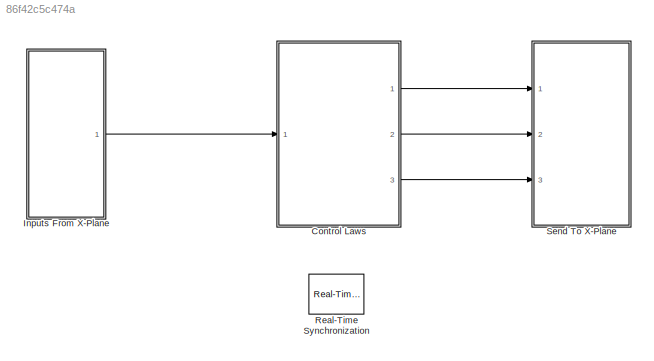
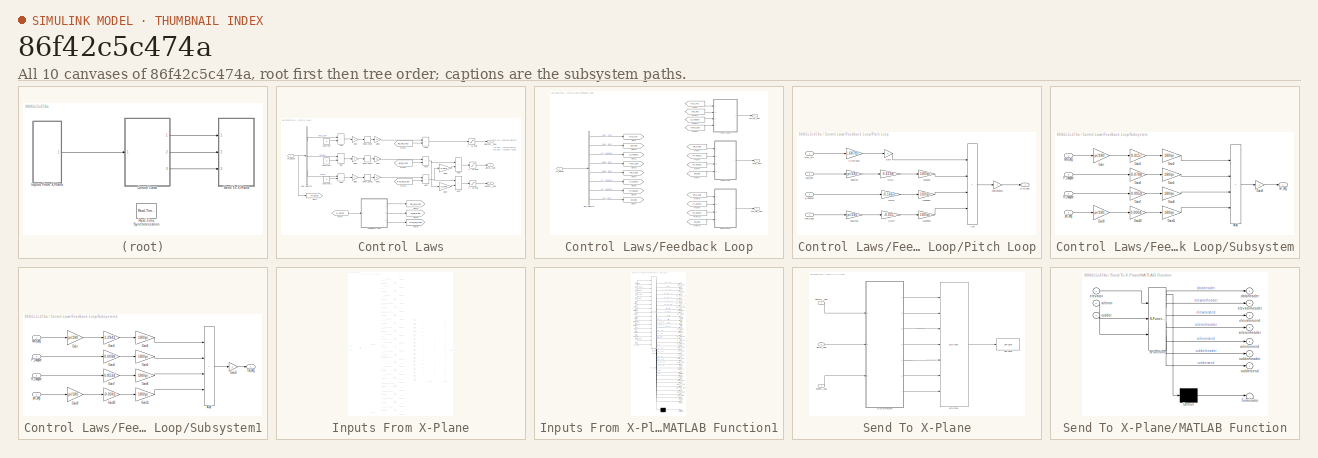
[diagram: thumbnail index - all 10 canvases of the model, root first then tree order]
MODEL slx_86f42c5c474a
KIND model
CONFIG AbsTol = auto
CONFIG EnableMultiTasking = off
CONFIG FixedStep = .0125
CONFIG MaxStep = auto
CONFIG MinStep = auto
CONFIG RelTol = 1e-3
CONFIG SampleTimeConstraint = Unconstrained
CONFIG Solver = FixedStepAuto
CONFIG SolverName = FixedStepAuto
CONFIG StartTime = 0.0
CONFIG StopTime = inf
BLOCK [SubSystem] Control Laws
  Ports = [1, 3]
BLOCK [Saturate] Control Laws/+//- 15 deg
  LowerLimit = -15
  UpperLimit = 15
BLOCK [Saturate] Control Laws/+//- 18 deg
  LowerLimit = -18
  UpperLimit = 18
BLOCK [Saturate] Control Laws/+//- 30 deg
  LowerLimit = -30
  UpperLimit = 30
BLOCK [Sum] Control Laws/Add
  IconShape = rectangular
  Ports = [2, 1]
BLOCK [Sum] Control Laws/Add1
  IconShape = rectangular
  Ports = [2, 1]
BLOCK [Sum] Control Laws/Add2
  IconShape = rectangular
  Ports = [2, 1]
BLOCK [Sum] Control Laws/Add3
  IconShape = rectangular
  Ports = [2, 1]
BLOCK [Sum] Control Laws/Add4
  IconShape = rectangular
  Ports = [2, 1]
BLOCK [Sum] Control Laws/Add5
  IconShape = rectangular
  Ports = [2, 1]
BLOCK [Sum] Control Laws/Add6
  IconShape = rectangular
  Ports = [2, 1]
BLOCK [Sum] Control Laws/Add7
  IconShape = rectangular
  Ports = [2, 1]
BLOCK [Outport] Control Laws/Aileron__Deg
  Port = 2
BLOCK [BusSelector] Control Laws/Bus Selector
  OutputSignals = long_stick,lat_stick,pedal
  Ports = [1, 3]
BLOCK [Constant] Control Laws/Constant
  OutDataTypeStr = single
  Value = -.5
BLOCK [Constant] Control Laws/Constant1
  OutDataTypeStr = single
  Value = -.5
BLOCK [Constant] Control Laws/Constant2
  OutDataTypeStr = single
  Value = -.5
BLOCK [DeadZone] Control Laws/Dead Zone
  LowerValue = -0.05
  UpperValue = 0.05
BLOCK [DeadZone] Control Laws/Dead Zone1
  LowerValue = -0.05
  UpperValue = 0.05
BLOCK [DeadZone] Control Laws/Dead Zone2
  LowerValue = -0.05
  UpperValue = 0.05
BLOCK [Outport] Control Laws/Elevator__Deg
BLOCK [SubSystem] Control Laws/Feedback Loop
  Ports = [1, 3]
BLOCK [Outport] Control Laws/Feedback Loop/Ail_FB__DEG
  Port = 2
BLOCK [BusSelector] Control Laws/Feedback Loop/Bus Selector
  OutputSignals = vtas__KTS,aoa__deg,Q__radqsec,theta__deg,beta__deg,P__radqsec,R__radqsec,phi__deg
  Ports = [1, 8]
BLOCK [Outport] Control Laws/Feedback Loop/Elv_FB__DEG
BLOCK [From] Control Laws/Feedback Loop/From
  GotoTag = vtas_KTS
BLOCK [From] Control Laws/Feedback Loop/From1
  GotoTag = aoa_deg
BLOCK [From] Control Laws/Feedback Loop/From10
  GotoTag = R_radqsec
BLOCK [From] Control Laws/Feedback Loop/From11
  GotoTag = phi_deg
BLOCK [From] Control Laws/Feedback Loop/From2
  GotoTag = Q_radqsec
BLOCK [From] Control Laws/Feedback Loop/From3
  GotoTag = theta_deg
BLOCK [From] Control Laws/Feedback Loop/From4
  GotoTag = beta_deg
BLOCK [From] Control Laws/Feedback Loop/From5
  GotoTag = P_radqsec
BLOCK [From] Control Laws/Feedback Loop/From6
  GotoTag = R_radqsec
BLOCK [From] Control Laws/Feedback Loop/From7
  GotoTag = phi_deg
BLOCK [From] Control Laws/Feedback Loop/From8
  GotoTag = beta_deg
BLOCK [From] Control Laws/Feedback Loop/From9
  GotoTag = P_radqsec
BLOCK [Goto] Control Laws/Feedback Loop/Goto
  GotoTag = vtas_KTS
BLOCK [Goto] Control Laws/Feedback Loop/Goto1
  GotoTag = aoa_deg
BLOCK [Goto] Control Laws/Feedback Loop/Goto2
  GotoTag = Q_radqsec
BLOCK [Goto] Control Laws/Feedback Loop/Goto3
  GotoTag = theta_deg
BLOCK [Goto] Control Laws/Feedback Loop/Goto4
  GotoTag = beta_deg
BLOCK [Goto] Control Laws/Feedback Loop/Goto5
  GotoTag = P_radqsec
BLOCK [Goto] Control Laws/Feedback Loop/Goto6
  GotoTag = R_radqsec
BLOCK [Goto] Control Laws/Feedback Loop/Goto7
  GotoTag = phi_deg
BLOCK [SubSystem] Control Laws/Feedback Loop/Pitch Loop
  Ports = [4, 1]
BLOCK [Sum] Control Laws/Feedback Loop/Pitch Loop/Add
  IconShape = rectangular
  Inputs = ++++
  Ports = [4, 1]
BLOCK [Outport] Control Laws/Feedback Loop/Pitch Loop/Elev_deg
BLOCK [Gain] Control Laws/Feedback Loop/Pitch Loop/Gain
  Gain = 0
BLOCK [Gain] Control Laws/Feedback Loop/Pitch Loop/Gain1
  Gain = 0.4198
BLOCK [Gain] Control Laws/Feedback Loop/Pitch Loop/Gain2
  Gain = -0.1663
BLOCK [Gain] Control Laws/Feedback Loop/Pitch Loop/Gain3
  Gain = -0.021
BLOCK [Gain] Control Laws/Feedback Loop/Pitch Loop/Kts2ftqsec
  Gain = 1.68781
BLOCK [Inport] Control Laws/Feedback Loop/Pitch Loop/aoa_deg
  Port = 2
BLOCK [Gain] Control Laws/Feedback Loop/Pitch Loop/deg2rad
  Gain = pi/180
BLOCK [Gain] Control Laws/Feedback Loop/Pitch Loop/deg2rad2
  Gain = pi/180
BLOCK [Gain] Control Laws/Feedback Loop/Pitch Loop/negfeedback
  Gain = -1
BLOCK [Inport] Control Laws/Feedback Loop/Pitch Loop/q_radqsec
  Port = 3
BLOCK [Gain] Control Laws/Feedback Loop/Pitch Loop/rad2deg
  Gain = 180/pi
BLOCK [Gain] Control Laws/Feedback Loop/Pitch Loop/rad2deg1
  Gain = 180/pi
BLOCK [Gain] Control Laws/Feedback Loop/Pitch Loop/rad2deg2
  Gain = 180/pi
BLOCK [Inport] Control Laws/Feedback Loop/Pitch Loop/theta_deg
  Port = 4
BLOCK [Inport] Control Laws/Feedback Loop/Pitch Loop/vtas__kts
BLOCK [Outport] Control Laws/Feedback Loop/Rud_FB__DEG
  Port = 3
BLOCK [SubSystem] Control Laws/Feedback Loop/Subsystem
  Ports = [4, 1]
BLOCK [Sum] Control Laws/Feedback Loop/Subsystem/Add
  IconShape = rectangular
  Inputs = ++++
  Ports = [4, 1]
BLOCK [Gain] Control Laws/Feedback Loop/Subsystem/Gain
  Gain = pi/180
BLOCK [Gain] Control Laws/Feedback Loop/Subsystem/Gain1
  Gain = -0.4157
BLOCK [Gain] Control Laws/Feedback Loop/Subsystem/Gain10
  Gain = 0.0004
BLOCK [Gain] Control Laws/Feedback Loop/Subsystem/Gain11
  Gain = 180/pi
BLOCK [Gain] Control Laws/Feedback Loop/Subsystem/Gain2
  Gain = 180/pi
BLOCK [Gain] Control Laws/Feedback Loop/Subsystem/Gain3
  Gain = -1
BLOCK [Gain] Control Laws/Feedback Loop/Subsystem/Gain4
  Gain = -0.0788
BLOCK [Gain] Control Laws/Feedback Loop/Subsystem/Gain5
  Gain = 180/pi
BLOCK [Gain] Control Laws/Feedback Loop/Subsystem/Gain7
  Gain = -0.0059
BLOCK [Gain] Control Laws/Feedback Loop/Subsystem/Gain8
  Gain = 180/pi
BLOCK [Gain] Control Laws/Feedback Loop/Subsystem/Gain9
  Gain = pi/180
BLOCK [Inport] Control Laws/Feedback Loop/Subsystem/P_radqsec
  Port = 2
BLOCK [Inport] Control Laws/Feedback Loop/Subsystem/R_radqsec
  Port = 3
BLOCK [Outport] Control Laws/Feedback Loop/Subsystem/ail_deg
BLOCK [Inport] Control Laws/Feedback Loop/Subsystem/beta_deg
BLOCK [Inport] Control Laws/Feedback Loop/Subsystem/phi_deg
  Port = 4
BLOCK [SubSystem] Control Laws/Feedback Loop/Subsystem1
  Ports = [4, 1]
BLOCK [Sum] Control Laws/Feedback Loop/Subsystem1/Add
  IconShape = rectangular
  Inputs = ++++
  Ports = [4, 1]
BLOCK [Gain] Control Laws/Feedback Loop/Subsystem1/Gain
  Gain = pi/180
BLOCK [Gain] Control Laws/Feedback Loop/Subsystem1/Gain1
  Gain = 1.2943
BLOCK [Gain] Control Laws/Feedback Loop/Subsystem1/Gain10
  Gain = -0.0041
BLOCK [Gain] Control Laws/Feedback Loop/Subsystem1/Gain11
  Gain = 180/pi
BLOCK [Gain] Control Laws/Feedback Loop/Subsystem1/Gain2
  Gain = 180/pi
BLOCK [Gain] Control Laws/Feedback Loop/Subsystem1/Gain3
  Gain = -1
BLOCK [Gain] Control Laws/Feedback Loop/Subsystem1/Gain4
  Gain = 0.0098
BLOCK [Gain] Control Laws/Feedback Loop/Subsystem1/Gain5
  Gain = 180/pi
BLOCK [Gain] Control Laws/Feedback Loop/Subsystem1/Gain7
  Gain = 0.8534
BLOCK [Gain] Control Laws/Feedback Loop/Subsystem1/Gain8
  Gain = 180/pi
BLOCK [Gain] Control Laws/Feedback Loop/Subsystem1/Gain9
  Gain = pi/180
BLOCK [Inport] Control Laws/Feedback Loop/Subsystem1/P_radqsec
  Port = 2
BLOCK [Inport] Control Laws/Feedback Loop/Subsystem1/R_radqsec
  Port = 3
BLOCK [Inport] Control Laws/Feedback Loop/Subsystem1/beta_deg
BLOCK [Inport] Control Laws/Feedback Loop/Subsystem1/phi_deg
  Port = 4
BLOCK [Outport] Control Laws/Feedback Loop/Subsystem1/rud_deg
BLOCK [Inport] Control Laws/Feedback Loop/XP_Signals
BLOCK [From] Control Laws/From
  GotoTag = XP_Signals
BLOCK [From] Control Laws/From1
  GotoTag = Elv_FB_DEG
BLOCK [From] Control Laws/From2
  GotoTag = Ail_FB_DEG
BLOCK [From] Control Laws/From3
  GotoTag = Rud_FB_DEG
BLOCK [Gain] Control Laws/Gain
  Gain = -2
BLOCK [Gain] Control Laws/Gain1
  Gain = 2
BLOCK [Gain] Control Laws/Gain2
  Gain = -2
BLOCK [Gain] Control Laws/Gain3
  Gain = 15
BLOCK [Gain] Control Laws/Gain4
  Gain = 18
BLOCK [Gain] Control Laws/Gain5
  Gain = 30
BLOCK [Gain] Control Laws/Gain6
  Gain = -0.0974
BLOCK [Gain] Control Laws/Gain7
  Gain = -0.0749
BLOCK [Goto] Control Laws/Goto
  GotoTag = XP_Signals
BLOCK [Goto] Control Laws/Goto1
  GotoTag = Elv_FB_DEG
BLOCK [Goto] Control Laws/Goto2
  GotoTag = Ail_FB_DEG
BLOCK [Goto] Control Laws/Goto3
  GotoTag = Rud_FB_DEG
BLOCK [Outport] Control Laws/Rudder__Deg
  Port = 3
BLOCK [Inport] Control Laws/XP_Signals
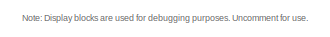
[diagram: Inputs From X-Plane - part 1/9, top left region]
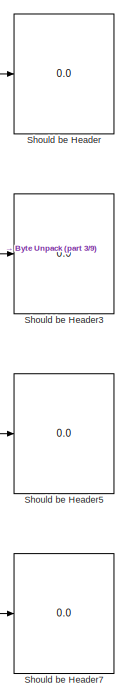
[diagram: Inputs From X-Plane - part 2/9, top center region]
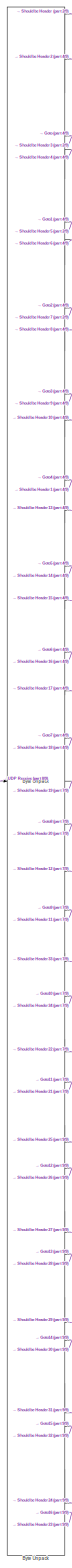
[diagram: Inputs From X-Plane - part 3/9, left side, full height]
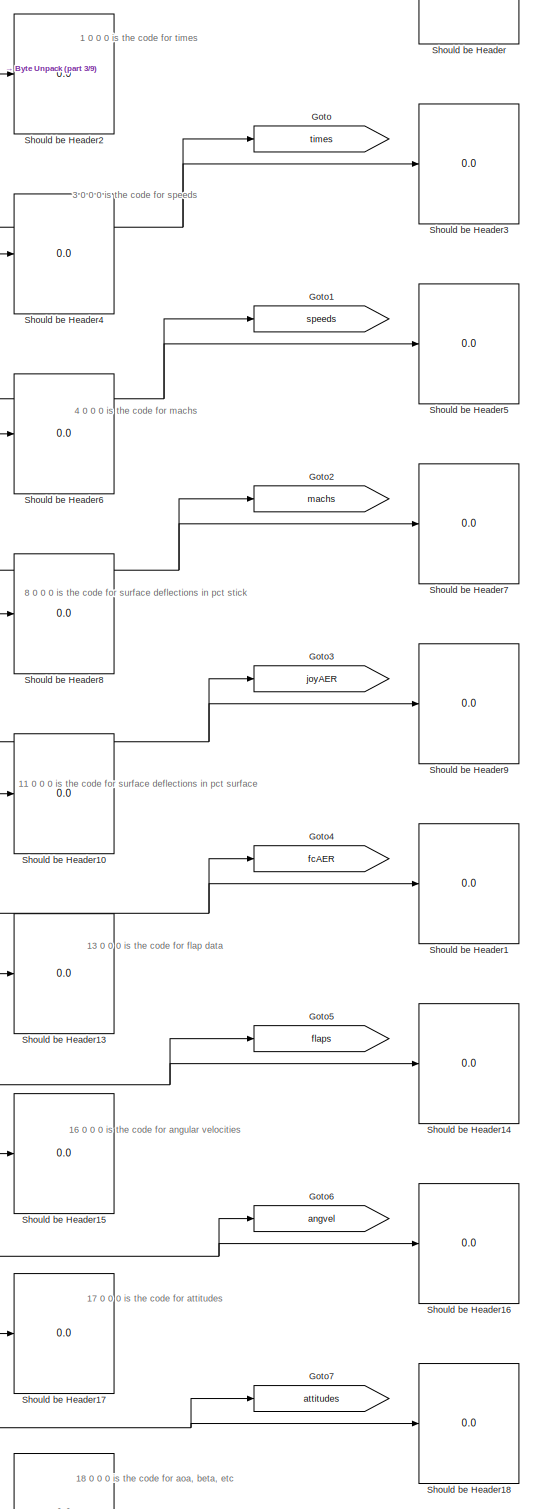
[diagram: Inputs From X-Plane - part 4/9, top center region]
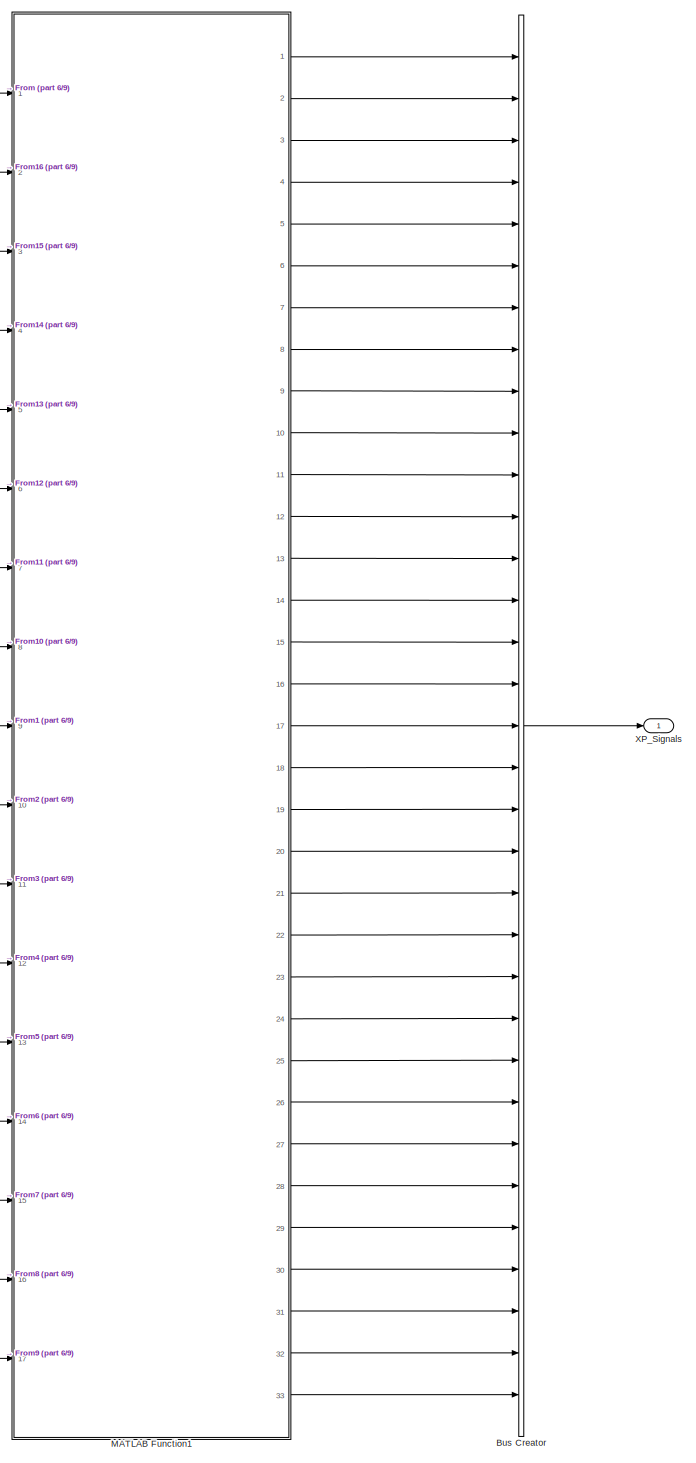
[diagram: Inputs From X-Plane - part 5/9, middle right region]
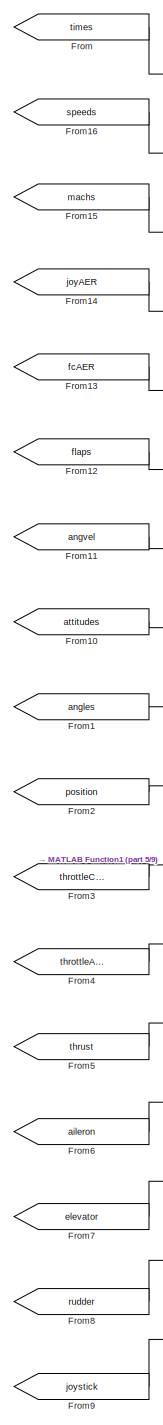
[diagram: Inputs From X-Plane - part 6/9, central region]
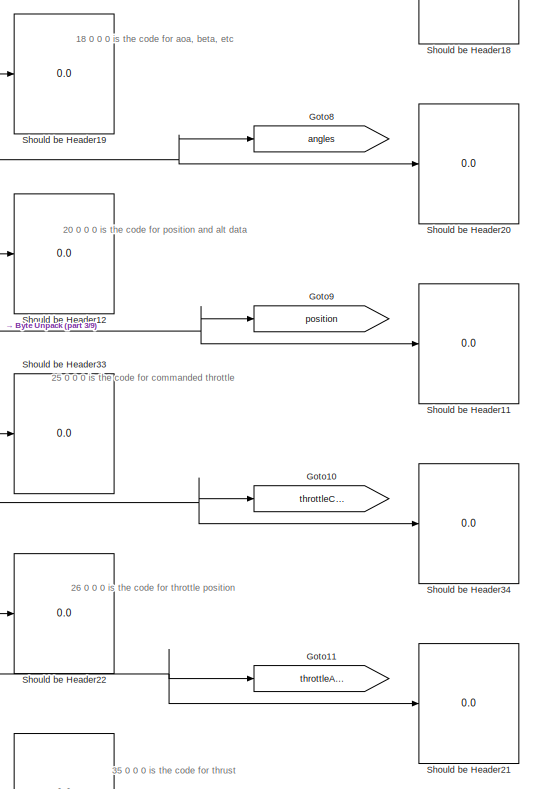
[diagram: Inputs From X-Plane - part 7/9, central region]
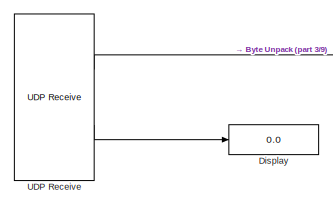
[diagram: Inputs From X-Plane - part 8/9, middle left region]
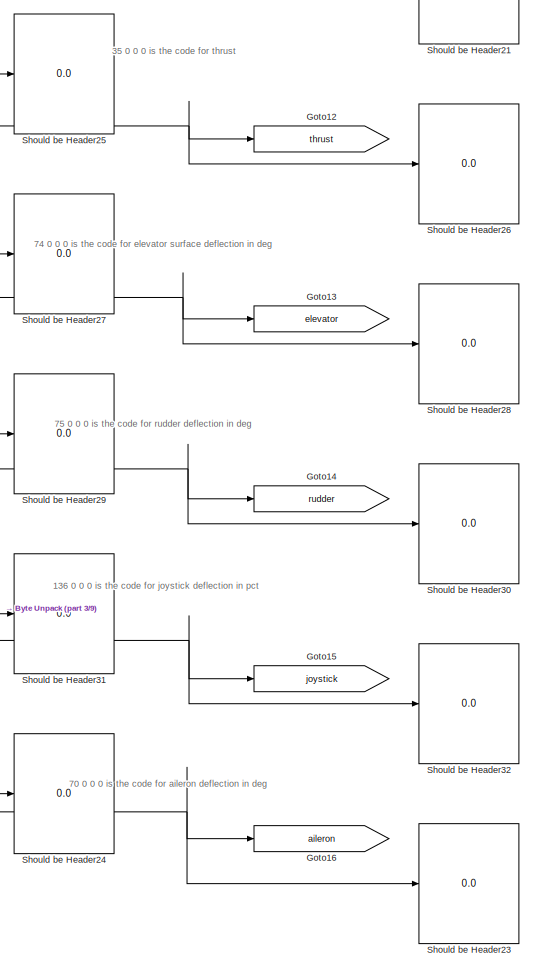
[diagram: Inputs From X-Plane - part 9/9, bottom center region]
BLOCK [SubSystem] Inputs From X-Plane
  Ports = [0, 1]
BLOCK [BusCreator] Inputs From X-Plane/Bus Creator
  DisplayOption = bar
  InheritFromInputs = on
  Inputs = 33
  Ports = [33, 1]
BLOCK [Reference] Inputs From X-Plane/Byte Unpack  REF=etargetslib/Byte Unpack
  Ports = [1, 35]
  SourceBlock = etargetslib/Byte Unpack
  SourceType = Byte Unpack
BLOCK [Display] Inputs From X-Plane/Display
  Commented = on
  Decimation = 1
  Ports = [1]
BLOCK [From] Inputs From X-Plane/From
  GotoTag = times
BLOCK [From] Inputs From X-Plane/From1
  GotoTag = angles
BLOCK [From] Inputs From X-Plane/From10
  GotoTag = attitudes
BLOCK [From] Inputs From X-Plane/From11
  GotoTag = angvel
BLOCK [From] Inputs From X-Plane/From12
  GotoTag = flaps
BLOCK [From] Inputs From X-Plane/From13
  GotoTag = fcAER
BLOCK [From] Inputs From X-Plane/From14
  GotoTag = joyAER
BLOCK [From] Inputs From X-Plane/From15
  GotoTag = machs
BLOCK [From] Inputs From X-Plane/From16
  GotoTag = speeds
BLOCK [From] Inputs From X-Plane/From2
  GotoTag = position
BLOCK [From] Inputs From X-Plane/From3
  GotoTag = throttleCMD
BLOCK [From] Inputs From X-Plane/From4
  GotoTag = throttleACT
BLOCK [From] Inputs From X-Plane/From5
  GotoTag = thrust
BLOCK [From] Inputs From X-Plane/From6
  GotoTag = aileron
BLOCK [From] Inputs From X-Plane/From7
  GotoTag = elevator
BLOCK [From] Inputs From X-Plane/From8
  GotoTag = rudder
BLOCK [From] Inputs From X-Plane/From9
  GotoTag = joystick
BLOCK [Goto] Inputs From X-Plane/Goto
  GotoTag = times
BLOCK [Goto] Inputs From X-Plane/Goto1
  GotoTag = speeds
BLOCK [Goto] Inputs From X-Plane/Goto10
  GotoTag = throttleCMD
BLOCK [Goto] Inputs From X-Plane/Goto11
  GotoTag = throttleACT
BLOCK [Goto] Inputs From X-Plane/Goto12
  GotoTag = thrust
BLOCK [Goto] Inputs From X-Plane/Goto13
  GotoTag = elevator
BLOCK [Goto] Inputs From X-Plane/Goto14
  GotoTag = rudder
BLOCK [Goto] Inputs From X-Plane/Goto15
  GotoTag = joystick
BLOCK [Goto] Inputs From X-Plane/Goto16
  GotoTag = aileron
BLOCK [Goto] Inputs From X-Plane/Goto2
  GotoTag = machs
BLOCK [Goto] Inputs From X-Plane/Goto3
  GotoTag = joyAER
BLOCK [Goto] Inputs From X-Plane/Goto4
  GotoTag = fcAER
BLOCK [Goto] Inputs From X-Plane/Goto5
  GotoTag = flaps
BLOCK [Goto] Inputs From X-Plane/Goto6
  GotoTag = angvel
BLOCK [Goto] Inputs From X-Plane/Goto7
  GotoTag = attitudes
BLOCK [Goto] Inputs From X-Plane/Goto8
  GotoTag = angles
BLOCK [Goto] Inputs From X-Plane/Goto9
  GotoTag = position
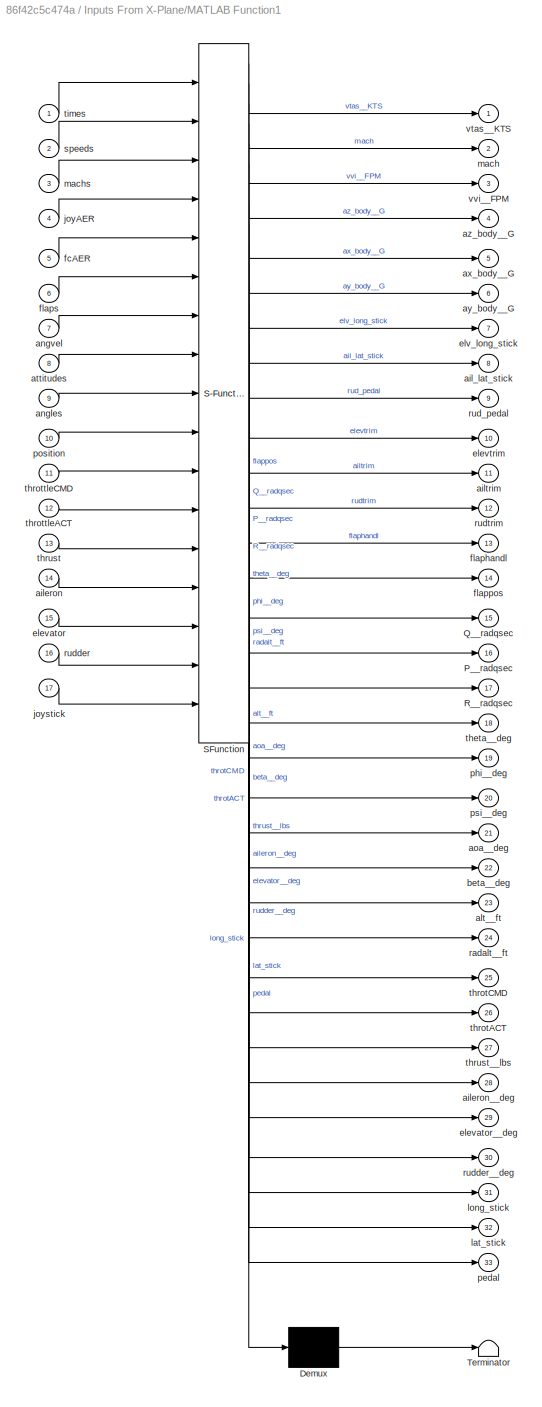
BLOCK [SubSystem] Inputs From X-Plane/MATLAB Function1
  ErrorFcn = Stateflow.Translate.translate
  PermitHierarchicalResolution = ExplicitOnly
  Ports = [17, 33]
  SFBlockType = MATLAB Function
  TreatAsAtomicUnit = on
BLOCK [Demux] Inputs From X-Plane/MATLAB Function1/ Demux 
  Outputs = 1
  Ports = [1, 1]
BLOCK [S-Function] Inputs From X-Plane/MATLAB Function1/ SFunction 
  EnableBusSupport = off
  FunctionName = sf_sfun
  PortCounts = [17 34]
  Ports = [17, 34]
  SFcnIsStateOwnerBlock = off
  SFunctionDeploymentMode = off
  Tag = Stateflow S-Function imfSILClaws 1
BLOCK [Terminator] Inputs From X-Plane/MATLAB Function1/ Terminator 
BLOCK [Outport] Inputs From X-Plane/MATLAB Function1/P__radqsec
  Port = 16
BLOCK [Outport] Inputs From X-Plane/MATLAB Function1/Q__radqsec
  Port = 15
BLOCK [Outport] Inputs From X-Plane/MATLAB Function1/R__radqsec
  Port = 17
BLOCK [Outport] Inputs From X-Plane/MATLAB Function1/ail_lat_stick
  Port = 8
BLOCK [Inport] Inputs From X-Plane/MATLAB Function1/aileron
  Port = 14
BLOCK [Outport] Inputs From X-Plane/MATLAB Function1/aileron__deg
  Port = 28
BLOCK [Outport] Inputs From X-Plane/MATLAB Function1/ailtrim
  Port = 11
BLOCK [Outport] Inputs From X-Plane/MATLAB Function1/alt__ft
  Port = 23
BLOCK [Inport] Inputs From X-Plane/MATLAB Function1/angles
  Port = 9
BLOCK [Inport] Inputs From X-Plane/MATLAB Function1/angvel
  Port = 7
BLOCK [Outport] Inputs From X-Plane/MATLAB Function1/aoa__deg
  Port = 21
BLOCK [Inport] Inputs From X-Plane/MATLAB Function1/attitudes
  Port = 8
BLOCK [Outport] Inputs From X-Plane/MATLAB Function1/ax_body__G
  Port = 5
BLOCK [Outport] Inputs From X-Plane/MATLAB Function1/ay_body__G
  Port = 6
BLOCK [Outport] Inputs From X-Plane/MATLAB Function1/az_body__G
  Port = 4
BLOCK [Outport] Inputs From X-Plane/MATLAB Function1/beta__deg
  Port = 22
BLOCK [Inport] Inputs From X-Plane/MATLAB Function1/elevator
  Port = 15
BLOCK [Outport] Inputs From X-Plane/MATLAB Function1/elevator__deg
  Port = 29
BLOCK [Outport] Inputs From X-Plane/MATLAB Function1/elevtrim
  Port = 10
BLOCK [Outport] Inputs From X-Plane/MATLAB Function1/elv_long_stick
  Port = 7
BLOCK [Inport] Inputs From X-Plane/MATLAB Function1/fcAER
  Port = 5
BLOCK [Outport] Inputs From X-Plane/MATLAB Function1/flaphandl
  Port = 13
BLOCK [Outport] Inputs From X-Plane/MATLAB Function1/flappos
  Port = 14
BLOCK [Inport] Inputs From X-Plane/MATLAB Function1/flaps
  Port = 6
BLOCK [Inport] Inputs From X-Plane/MATLAB Function1/joyAER
  Port = 4
BLOCK [Inport] Inputs From X-Plane/MATLAB Function1/joystick
  Port = 17
BLOCK [Outport] Inputs From X-Plane/MATLAB Function1/lat_stick
  Port = 32
BLOCK [Outport] Inputs From X-Plane/MATLAB Function1/long_stick
  Port = 31
BLOCK [Outport] Inputs From X-Plane/MATLAB Function1/mach
  Port = 2
BLOCK [Inport] Inputs From X-Plane/MATLAB Function1/machs
  Port = 3
BLOCK [Outport] Inputs From X-Plane/MATLAB Function1/pedal
  Port = 33
BLOCK [Outport] Inputs From X-Plane/MATLAB Function1/phi__deg
  Port = 19
BLOCK [Inport] Inputs From X-Plane/MATLAB Function1/position
  Port = 10
BLOCK [Outport] Inputs From X-Plane/MATLAB Function1/psi__deg
  Port = 20
BLOCK [Outport] Inputs From X-Plane/MATLAB Function1/radalt__ft
  Port = 24
BLOCK [Outport] Inputs From X-Plane/MATLAB Function1/rud_pedal
  Port = 9
BLOCK [Inport] Inputs From X-Plane/MATLAB Function1/rudder
  Port = 16
BLOCK [Outport] Inputs From X-Plane/MATLAB Function1/rudder__deg
  Port = 30
BLOCK [Outport] Inputs From X-Plane/MATLAB Function1/rudtrim
  Port = 12
BLOCK [Inport] Inputs From X-Plane/MATLAB Function1/speeds
  Port = 2
BLOCK [Outport] Inputs From X-Plane/MATLAB Function1/theta__deg
  Port = 18
BLOCK [Outport] Inputs From X-Plane/MATLAB Function1/throtACT
  Port = 26
BLOCK [Outport] Inputs From X-Plane/MATLAB Function1/throtCMD
  Port = 25
BLOCK [Inport] Inputs From X-Plane/MATLAB Function1/throttleACT
  Port = 12
BLOCK [Inport] Inputs From X-Plane/MATLAB Function1/throttleCMD
  Port = 11
BLOCK [Inport] Inputs From X-Plane/MATLAB Function1/thrust
  Port = 13
BLOCK [Outport] Inputs From X-Plane/MATLAB Function1/thrust__lbs
  Port = 27
BLOCK [Inport] Inputs From X-Plane/MATLAB Function1/times
BLOCK [Outport] Inputs From X-Plane/MATLAB Function1/vtas__KTS
BLOCK [Outport] Inputs From X-Plane/MATLAB Function1/vvi__FPM
  Port = 3
BLOCK [Display] Inputs From X-Plane/Should be Header
  Commented = on
  Decimation = 1
  Ports = [1]
BLOCK [Display] Inputs From X-Plane/Should be Header1
  Commented = on
  Decimation = 1
  Ports = [1]
BLOCK [Display] Inputs From X-Plane/Should be Header10
  Commented = on
  Decimation = 1
  Ports = [1]
BLOCK [Display] Inputs From X-Plane/Should be Header11
  Commented = on
  Decimation = 1
  Ports = [1]
BLOCK [Display] Inputs From X-Plane/Should be Header12
  Commented = on
  Decimation = 1
  Ports = [1]
BLOCK [Display] Inputs From X-Plane/Should be Header13
  Commented = on
  Decimation = 1
  Ports = [1]
BLOCK [Display] Inputs From X-Plane/Should be Header14
  Commented = on
  Decimation = 1
  Ports = [1]
BLOCK [Display] Inputs From X-Plane/Should be Header15
  Commented = on
  Decimation = 1
  Ports = [1]
BLOCK [Display] Inputs From X-Plane/Should be Header16
  Commented = on
  Decimation = 1
  Ports = [1]
BLOCK [Display] Inputs From X-Plane/Should be Header17
  Commented = on
  Decimation = 1
  Ports = [1]
BLOCK [Display] Inputs From X-Plane/Should be Header18
  Commented = on
  Decimation = 1
  Ports = [1]
BLOCK [Display] Inputs From X-Plane/Should be Header19
  Commented = on
  Decimation = 1
  Ports = [1]
BLOCK [Display] Inputs From X-Plane/Should be Header2
  Commented = on
  Decimation = 1
  Ports = [1]
BLOCK [Display] Inputs From X-Plane/Should be Header20
  Commented = on
  Decimation = 1
  Ports = [1]
BLOCK [Display] Inputs From X-Plane/Should be Header21
  Commented = on
  Decimation = 1
  Ports = [1]
BLOCK [Display] Inputs From X-Plane/Should be Header22
  Commented = on
  Decimation = 1
  Ports = [1]
BLOCK [Display] Inputs From X-Plane/Should be Header23
  Commented = on
  Decimation = 1
  Ports = [1]
BLOCK [Display] Inputs From X-Plane/Should be Header24
  Commented = on
  Decimation = 1
  Ports = [1]
BLOCK [Display] Inputs From X-Plane/Should be Header25
  Commented = on
  Decimation = 1
  Ports = [1]
BLOCK [Display] Inputs From X-Plane/Should be Header26
  Commented = on
  Decimation = 1
  Ports = [1]
BLOCK [Display] Inputs From X-Plane/Should be Header27
  Commented = on
  Decimation = 1
  Ports = [1]
BLOCK [Display] Inputs From X-Plane/Should be Header28
  Commented = on
  Decimation = 1
  Ports = [1]
BLOCK [Display] Inputs From X-Plane/Should be Header29
  Commented = on
  Decimation = 1
  Ports = [1]
BLOCK [Display] Inputs From X-Plane/Should be Header3
  Commented = on
  Decimation = 1
  Ports = [1]
BLOCK [Display] Inputs From X-Plane/Should be Header30
  Commented = on
  Decimation = 1
  Ports = [1]
BLOCK [Display] Inputs From X-Plane/Should be Header31
  Commented = on
  Decimation = 1
  Ports = [1]
BLOCK [Display] Inputs From X-Plane/Should be Header32
  Commented = on
  Decimation = 1
  Ports = [1]
BLOCK [Display] Inputs From X-Plane/Should be Header33
  Commented = on
  Decimation = 1
  Ports = [1]
BLOCK [Display] Inputs From X-Plane/Should be Header34
  Commented = on
  Decimation = 1
  Ports = [1]
BLOCK [Display] Inputs From X-Plane/Should be Header4
  Commented = on
  Decimation = 1
  Ports = [1]
BLOCK [Display] Inputs From X-Plane/Should be Header5
  Commented = on
  Decimation = 1
  Ports = [1]
BLOCK [Display] Inputs From X-Plane/Should be Header6
  Commented = on
  Decimation = 1
  Ports = [1]
BLOCK [Display] Inputs From X-Plane/Should be Header7
  Commented = on
  Decimation = 1
  Ports = [1]
BLOCK [Display] Inputs From X-Plane/Should be Header8
  Commented = on
  Decimation = 1
  Ports = [1]
BLOCK [Display] Inputs From X-Plane/Should be Header9
  Commented = on
  Decimation = 1
  Ports = [1]
BLOCK [Reference] Inputs From X-Plane/UDP Receive  REF=dspnetwork/UDP Receive
  Ports = [0, 2]
  SourceBlock = dspnetwork/UDP Receive
  SourceType = UDP Receive
BLOCK [Outport] Inputs From X-Plane/XP_Signals
BLOCK [Reference] Real-Time Synchronization  REF=sldrtlib/Real-Time
Synchronization
  Ports = []
  SourceBlock = sldrtlib/Real-Time\nSynchronization
  SourceType = Simulink Desktop Real-Time Synchronization
BLOCK [SubSystem] Send To X-Plane
  Ports = [3]
BLOCK [Inport] Send To X-Plane/Aileron__Deg
  OutDataTypeStr = single
  Port = 2
BLOCK [Reference] Send To X-Plane/Byte Pack  REF=etargetslib/Byte Pack
  Ports = [7, 1]
  SourceBlock = etargetslib/Byte Pack
  SourceType = Byte pack
BLOCK [Inport] Send To X-Plane/Elevator__Deg
  OutDataTypeStr = single
BLOCK [SubSystem] Send To X-Plane/MATLAB Function
  ErrorFcn = Stateflow.Translate.translate
  PermitHierarchicalResolution = ExplicitOnly
  Ports = [3, 7]
  SFBlockType = MATLAB Function
  TreatAsAtomicUnit = on
BLOCK [Demux] Send To X-Plane/MATLAB Function/ Demux 
  Outputs = 1
  Ports = [1, 1]
BLOCK [S-Function] Send To X-Plane/MATLAB Function/ SFunction 
  EnableBusSupport = off
  FunctionName = sf_sfun
  PortCounts = [3 8]
  Ports = [3, 8]
  SFcnIsStateOwnerBlock = off
  SFunctionDeploymentMode = off
  Tag = Stateflow S-Function imfSILClaws 2
BLOCK [Terminator] Send To X-Plane/MATLAB Function/ Terminator 
BLOCK [Inport] Send To X-Plane/MATLAB Function/aileron
  Port = 2
BLOCK [Outport] Send To X-Plane/MATLAB Function/aileronheader
  Port = 4
BLOCK [Outport] Send To X-Plane/MATLAB Function/aileronsend
  Port = 5
BLOCK [Outport] Send To X-Plane/MATLAB Function/dataheader
BLOCK [Inport] Send To X-Plane/MATLAB Function/elevator
BLOCK [Outport] Send To X-Plane/MATLAB Function/elevatorheader
  Port = 2
BLOCK [Outport] Send To X-Plane/MATLAB Function/elevatorsend
  Port = 3
BLOCK [Inport] Send To X-Plane/MATLAB Function/rudder
  Port = 3
BLOCK [Outport] Send To X-Plane/MATLAB Function/rudderheader
  Port = 6
BLOCK [Outport] Send To X-Plane/MATLAB Function/ruddersend
  Port = 7
BLOCK [Inport] Send To X-Plane/Rudder__Deg
  OutDataTypeStr = single
  Port = 3
BLOCK [Reference] Send To X-Plane/UDP Send  REF=dspnetwork/UDP Send
  Ports = [1]
  SourceBlock = dspnetwork/UDP Send
  SourceType = UDP Send
ANNOTATION Control Laws: pitch up = negative elevator roll right = positive aileron yaw right = positive rudder
ANNOTATION Inputs From X-Plane: 18 0 0 0 is the code for aoa, beta, etc
ANNOTATION Inputs From X-Plane: 1 0 0 0 is the code for times
ANNOTATION Inputs From X-Plane: 11 0 0 0 is the code for surface deflections in pct surface
ANNOTATION Inputs From X-Plane: 13 0 0 0 is the code for flap data
ANNOTATION Inputs From X-Plane: 136 0 0 0 is the code for joystick deflection in pct
ANNOTATION Inputs From X-Plane: 16 0 0 0 is the code for angular velocities
ANNOTATION Inputs From X-Plane: 17 0 0 0 is the code for attitudes
ANNOTATION Inputs From X-Plane: 20 0 0 0 is the code for position and alt data
ANNOTATION Inputs From X-Plane: 25 0 0 0 is the code for commanded throttle
ANNOTATION Inputs From X-Plane: 26 0 0 0 is the code for throttle position
ANNOTATION Inputs From X-Plane: 3 0 0 0 is the code for speeds
ANNOTATION Inputs From X-Plane: 35 0 0 0 is the code for thrust
ANNOTATION Inputs From X-Plane: 4 0 0 0 is the code for machs
ANNOTATION Inputs From X-Plane: 70 0 0 0 is the code for aileron deflection in deg
ANNOTATION Inputs From X-Plane: 74 0 0 0 is the code for elevator surface deflection in deg
ANNOTATION Inputs From X-Plane: 75 0 0 0 is the code for rudder deflection in deg
ANNOTATION Inputs From X-Plane: 8 0 0 0 is the code for surface deflections in pct stick
ANNOTATION Inputs From X-Plane: Note: Display blocks are used for debugging purposes. Uncomment for use.
LINE Control Laws/+//- 15 deg:1 -> Control Laws/Elevator__Deg:1
LINE Control Laws/+//- 18 deg:1 -> Control Laws/Aileron__Deg:1
LINE Control Laws/+//- 30 deg:1 -> Control Laws/Rudder__Deg:1
LINE Control Laws/Add1:1 -> Control Laws/Gain1:1
LINE Control Laws/Add2:1 -> Control Laws/Gain2:1
LINE Control Laws/Add3:1 -> Control Laws/+//- 15 deg:1
NET Control Laws/Add4:1 -> Control Laws/Add6:1, Control Laws/Gain7:1
NET Control Laws/Add5:1 -> Control Laws/Add7:1, Control Laws/Gain6:1
LINE Control Laws/Add6:1 -> Control Laws/+//- 18 deg:1
LINE Control Laws/Add7:1 -> Control Laws/+//- 30 deg:1
LINE Control Laws/Add:1 -> Control Laws/Gain:1
LINE Control Laws/Bus Selector:1 -> Control Laws/Add:1
LINE Control Laws/Bus Selector:2 -> Control Laws/Add1:1
LINE Control Laws/Bus Selector:3 -> Control Laws/Add2:1
LINE Control Laws/Constant1:1 -> Control Laws/Add1:2
LINE Control Laws/Constant2:1 -> Control Laws/Add2:2
LINE Control Laws/Constant:1 -> Control Laws/Add:2
LINE Control Laws/Dead Zone1:1 -> Control Laws/Gain4:1
LINE Control Laws/Dead Zone2:1 -> Control Laws/Gain5:1
LINE Control Laws/Dead Zone:1 -> Control Laws/Gain3:1
LINE Control Laws/Feedback Loop/Bus Selector:1 -> Control Laws/Feedback Loop/Goto:1
LINE Control Laws/Feedback Loop/Bus Selector:2 -> Control Laws/Feedback Loop/Goto1:1
LINE Control Laws/Feedback Loop/Bus Selector:3 -> Control Laws/Feedback Loop/Goto2:1
LINE Control Laws/Feedback Loop/Bus Selector:4 -> Control Laws/Feedback Loop/Goto3:1
LINE Control Laws/Feedback Loop/Bus Selector:5 -> Control Laws/Feedback Loop/Goto4:1
LINE Control Laws/Feedback Loop/Bus Selector:6 -> Control Laws/Feedback Loop/Goto5:1
LINE Control Laws/Feedback Loop/Bus Selector:7 -> Control Laws/Feedback Loop/Goto6:1
LINE Control Laws/Feedback Loop/Bus Selector:8 -> Control Laws/Feedback Loop/Goto7:1
LINE Control Laws/Feedback Loop/From10:1 -> Control Laws/Feedback Loop/Subsystem1:3
LINE Control Laws/Feedback Loop/From11:1 -> Control Laws/Feedback Loop/Subsystem1:4
LINE Control Laws/Feedback Loop/From1:1 -> Control Laws/Feedback Loop/Pitch Loop:2
LINE Control Laws/Feedback Loop/From2:1 -> Control Laws/Feedback Loop/Pitch Loop:3
LINE Control Laws/Feedback Loop/From3:1 -> Control Laws/Feedback Loop/Pitch Loop:4
LINE Control Laws/Feedback Loop/From4:1 -> Control Laws/Feedback Loop/Subsystem:1
LINE Control Laws/Feedback Loop/From5:1 -> Control Laws/Feedback Loop/Subsystem:2
LINE Control Laws/Feedback Loop/From6:1 -> Control Laws/Feedback Loop/Subsystem:3
LINE Control Laws/Feedback Loop/From7:1 -> Control Laws/Feedback Loop/Subsystem:4
LINE Control Laws/Feedback Loop/From8:1 -> Control Laws/Feedback Loop/Subsystem1:1
LINE Control Laws/Feedback Loop/From9:1 -> Control Laws/Feedback Loop/Subsystem1:2
LINE Control Laws/Feedback Loop/From:1 -> Control Laws/Feedback Loop/Pitch Loop:1
LINE Control Laws/Feedback Loop/Pitch Loop/Add:1 -> Control Laws/Feedback Loop/Pitch Loop/negfeedback:1
LINE Control Laws/Feedback Loop/Pitch Loop/Gain1:1 -> Control Laws/Feedback Loop/Pitch Loop/rad2deg:1
LINE Control Laws/Feedback Loop/Pitch Loop/Gain2:1 -> Control Laws/Feedback Loop/Pitch Loop/rad2deg1:1
LINE Control Laws/Feedback Loop/Pitch Loop/Gain3:1 -> Control Laws/Feedback Loop/Pitch Loop/rad2deg2:1
LINE Control Laws/Feedback Loop/Pitch Loop/Gain:1 -> Control Laws/Feedback Loop/Pitch Loop/Add:1
LINE Control Laws/Feedback Loop/Pitch Loop/Kts2ftqsec:1 -> Control Laws/Feedback Loop/Pitch Loop/Gain:1
LINE Control Laws/Feedback Loop/Pitch Loop/aoa_deg:1 -> Control Laws/Feedback Loop/Pitch Loop/deg2rad:1
LINE Control Laws/Feedback Loop/Pitch Loop/deg2rad2:1 -> Control Laws/Feedback Loop/Pitch Loop/Gain3:1
LINE Control Laws/Feedback Loop/Pitch Loop/deg2rad:1 -> Control Laws/Feedback Loop/Pitch Loop/Gain1:1
LINE Control Laws/Feedback Loop/Pitch Loop/negfeedback:1 -> Control Laws/Feedback Loop/Pitch Loop/Elev_deg:1
LINE Control Laws/Feedback Loop/Pitch Loop/q_radqsec:1 -> Control Laws/Feedback Loop/Pitch Loop/Gain2:1
LINE Control Laws/Feedback Loop/Pitch Loop/rad2deg1:1 -> Control Laws/Feedback Loop/Pitch Loop/Add:3
LINE Control Laws/Feedback Loop/Pitch Loop/rad2deg2:1 -> Control Laws/Feedback Loop/Pitch Loop/Add:4
LINE Control Laws/Feedback Loop/Pitch Loop/rad2deg:1 -> Control Laws/Feedback Loop/Pitch Loop/Add:2
LINE Control Laws/Feedback Loop/Pitch Loop/theta_deg:1 -> Control Laws/Feedback Loop/Pitch Loop/deg2rad2:1
LINE Control Laws/Feedback Loop/Pitch Loop/vtas__kts:1 -> Control Laws/Feedback Loop/Pitch Loop/Kts2ftqsec:1
LINE Control Laws/Feedback Loop/Pitch Loop:1 -> Control Laws/Feedback Loop/Elv_FB__DEG:1
LINE Control Laws/Feedback Loop/Subsystem/Add:1 -> Control Laws/Feedback Loop/Subsystem/Gain3:1
LINE Control Laws/Feedback Loop/Subsystem/Gain10:1 -> Control Laws/Feedback Loop/Subsystem/Gain11:1
LINE Control Laws/Feedback Loop/Subsystem/Gain11:1 -> Control Laws/Feedback Loop/Subsystem/Add:4
LINE Control Laws/Feedback Loop/Subsystem/Gain1:1 -> Control Laws/Feedback Loop/Subsystem/Gain2:1
LINE Control Laws/Feedback Loop/Subsystem/Gain2:1 -> Control Laws/Feedback Loop/Subsystem/Add:1
LINE Control Laws/Feedback Loop/Subsystem/Gain3:1 -> Control Laws/Feedback Loop/Subsystem/ail_deg:1
LINE Control Laws/Feedback Loop/Subsystem/Gain4:1 -> Control Laws/Feedback Loop/Subsystem/Gain5:1
LINE Control Laws/Feedback Loop/Subsystem/Gain5:1 -> Control Laws/Feedback Loop/Subsystem/Add:2
LINE Control Laws/Feedback Loop/Subsystem/Gain7:1 -> Control Laws/Feedback Loop/Subsystem/Gain8:1
LINE Control Laws/Feedback Loop/Subsystem/Gain8:1 -> Control Laws/Feedback Loop/Subsystem/Add:3
LINE Control Laws/Feedback Loop/Subsystem/Gain9:1 -> Control Laws/Feedback Loop/Subsystem/Gain10:1
LINE Control Laws/Feedback Loop/Subsystem/Gain:1 -> Control Laws/Feedback Loop/Subsystem/Gain1:1
LINE Control Laws/Feedback Loop/Subsystem/P_radqsec:1 -> Control Laws/Feedback Loop/Subsystem/Gain4:1
LINE Control Laws/Feedback Loop/Subsystem/R_radqsec:1 -> Control Laws/Feedback Loop/Subsystem/Gain7:1
LINE Control Laws/Feedback Loop/Subsystem/beta_deg:1 -> Control Laws/Feedback Loop/Subsystem/Gain:1
LINE Control Laws/Feedback Loop/Subsystem/phi_deg:1 -> Control Laws/Feedback Loop/Subsystem/Gain9:1
LINE Control Laws/Feedback Loop/Subsystem1/Add:1 -> Control Laws/Feedback Loop/Subsystem1/Gain3:1
LINE Control Laws/Feedback Loop/Subsystem1/Gain10:1 -> Control Laws/Feedback Loop/Subsystem1/Gain11:1
LINE Control Laws/Feedback Loop/Subsystem1/Gain11:1 -> Control Laws/Feedback Loop/Subsystem1/Add:4
LINE Control Laws/Feedback Loop/Subsystem1/Gain1:1 -> Control Laws/Feedback Loop/Subsystem1/Gain2:1
LINE Control Laws/Feedback Loop/Subsystem1/Gain2:1 -> Control Laws/Feedback Loop/Subsystem1/Add:1
LINE Control Laws/Feedback Loop/Subsystem1/Gain3:1 -> Control Laws/Feedback Loop/Subsystem1/rud_deg:1
LINE Control Laws/Feedback Loop/Subsystem1/Gain4:1 -> Control Laws/Feedback Loop/Subsystem1/Gain5:1
LINE Control Laws/Feedback Loop/Subsystem1/Gain5:1 -> Control Laws/Feedback Loop/Subsystem1/Add:2
LINE Control Laws/Feedback Loop/Subsystem1/Gain7:1 -> Control Laws/Feedback Loop/Subsystem1/Gain8:1
LINE Control Laws/Feedback Loop/Subsystem1/Gain8:1 -> Control Laws/Feedback Loop/Subsystem1/Add:3
LINE Control Laws/Feedback Loop/Subsystem1/Gain9:1 -> Control Laws/Feedback Loop/Subsystem1/Gain10:1
LINE Control Laws/Feedback Loop/Subsystem1/Gain:1 -> Control Laws/Feedback Loop/Subsystem1/Gain1:1
LINE Control Laws/Feedback Loop/Subsystem1/P_radqsec:1 -> Control Laws/Feedback Loop/Subsystem1/Gain4:1
LINE Control Laws/Feedback Loop/Subsystem1/R_radqsec:1 -> Control Laws/Feedback Loop/Subsystem1/Gain7:1
LINE Control Laws/Feedback Loop/Subsystem1/beta_deg:1 -> Control Laws/Feedback Loop/Subsystem1/Gain:1
LINE Control Laws/Feedback Loop/Subsystem1/phi_deg:1 -> Control Laws/Feedback Loop/Subsystem1/Gain9:1
LINE Control Laws/Feedback Loop/Subsystem1:1 -> Control Laws/Feedback Loop/Rud_FB__DEG:1
LINE Control Laws/Feedback Loop/Subsystem:1 -> Control Laws/Feedback Loop/Ail_FB__DEG:1
LINE Control Laws/Feedback Loop/XP_Signals:1 -> Control Laws/Feedback Loop/Bus Selector:1
LINE Control Laws/Feedback Loop:1 -> Control Laws/Goto1:1
LINE Control Laws/Feedback Loop:2 -> Control Laws/Goto2:1
LINE Control Laws/Feedback Loop:3 -> Control Laws/Goto3:1
LINE Control Laws/From1:1 -> Control Laws/Add3:2
LINE Control Laws/From2:1 -> Control Laws/Add4:2
LINE Control Laws/From3:1 -> Control Laws/Add5:2
LINE Control Laws/From:1 -> Control Laws/Feedback Loop:1
LINE Control Laws/Gain1:1 -> Control Laws/Dead Zone1:1
LINE Control Laws/Gain2:1 -> Control Laws/Dead Zone2:1
LINE Control Laws/Gain3:1 -> Control Laws/Add3:1
LINE Control Laws/Gain4:1 -> Control Laws/Add4:1
LINE Control Laws/Gain5:1 -> Control Laws/Add5:1
LINE Control Laws/Gain6:1 -> Control Laws/Add6:2
LINE Control Laws/Gain7:1 -> Control Laws/Add7:2
LINE Control Laws/Gain:1 -> Control Laws/Dead Zone:1
NET Control Laws/XP_Signals:1 -> Control Laws/Bus Selector:1, Control Laws/Goto:1
LINE Control Laws:1 -> Send To X-Plane:1
LINE Control Laws:2 -> Send To X-Plane:2
LINE Control Laws:3 -> Send To X-Plane:3
LINE Inputs From X-Plane/Bus Creator:1 -> Inputs From X-Plane/XP_Signals:1
LINE Inputs From X-Plane/Byte Unpack:1 -> Inputs From X-Plane/Should be Header:1
LINE Inputs From X-Plane/Byte Unpack:10 -> Inputs From X-Plane/Should be Header10:1
NET Inputs From X-Plane/Byte Unpack:11 -> Inputs From X-Plane/Goto4:1, Inputs From X-Plane/Should be Header1:1
LINE Inputs From X-Plane/Byte Unpack:12 -> Inputs From X-Plane/Should be Header13:1
NET Inputs From X-Plane/Byte Unpack:13 -> Inputs From X-Plane/Goto5:1, Inputs From X-Plane/Should be Header14:1
LINE Inputs From X-Plane/Byte Unpack:14 -> Inputs From X-Plane/Should be Header15:1
NET Inputs From X-Plane/Byte Unpack:15 -> Inputs From X-Plane/Goto6:1, Inputs From X-Plane/Should be Header16:1
LINE Inputs From X-Plane/Byte Unpack:16 -> Inputs From X-Plane/Should be Header17:1
NET Inputs From X-Plane/Byte Unpack:17 -> Inputs From X-Plane/Goto7:1, Inputs From X-Plane/Should be Header18:1
LINE Inputs From X-Plane/Byte Unpack:18 -> Inputs From X-Plane/Should be Header19:1
NET Inputs From X-Plane/Byte Unpack:19 -> Inputs From X-Plane/Goto8:1, Inputs From X-Plane/Should be Header20:1
LINE Inputs From X-Plane/Byte Unpack:2 -> Inputs From X-Plane/Should be Header2:1
LINE Inputs From X-Plane/Byte Unpack:20 -> Inputs From X-Plane/Should be Header12:1
NET Inputs From X-Plane/Byte Unpack:21 -> Inputs From X-Plane/Goto9:1, Inputs From X-Plane/Should be Header11:1
LINE Inputs From X-Plane/Byte Unpack:22 -> Inputs From X-Plane/Should be Header33:1
NET Inputs From X-Plane/Byte Unpack:23 -> Inputs From X-Plane/Goto10:1, Inputs From X-Plane/Should be Header34:1
LINE Inputs From X-Plane/Byte Unpack:24 -> Inputs From X-Plane/Should be Header22:1
NET Inputs From X-Plane/Byte Unpack:25 -> Inputs From X-Plane/Goto11:1, Inputs From X-Plane/Should be Header21:1
LINE Inputs From X-Plane/Byte Unpack:26 -> Inputs From X-Plane/Should be Header25:1
NET Inputs From X-Plane/Byte Unpack:27 -> Inputs From X-Plane/Goto12:1, Inputs From X-Plane/Should be Header26:1
LINE Inputs From X-Plane/Byte Unpack:28 -> Inputs From X-Plane/Should be Header27:1
NET Inputs From X-Plane/Byte Unpack:29 -> Inputs From X-Plane/Goto13:1, Inputs From X-Plane/Should be Header28:1
NET Inputs From X-Plane/Byte Unpack:3 -> Inputs From X-Plane/Goto:1, Inputs From X-Plane/Should be Header3:1
LINE Inputs From X-Plane/Byte Unpack:30 -> Inputs From X-Plane/Should be Header29:1
NET Inputs From X-Plane/Byte Unpack:31 -> Inputs From X-Plane/Goto14:1, Inputs From X-Plane/Should be Header30:1
LINE Inputs From X-Plane/Byte Unpack:32 -> Inputs From X-Plane/Should be Header31:1
NET Inputs From X-Plane/Byte Unpack:33 -> Inputs From X-Plane/Goto15:1, Inputs From X-Plane/Should be Header32:1
LINE Inputs From X-Plane/Byte Unpack:34 -> Inputs From X-Plane/Should be Header24:1
NET Inputs From X-Plane/Byte Unpack:35 -> Inputs From X-Plane/Goto16:1, Inputs From X-Plane/Should be Header23:1
LINE Inputs From X-Plane/Byte Unpack:4 -> Inputs From X-Plane/Should be Header4:1
NET Inputs From X-Plane/Byte Unpack:5 -> Inputs From X-Plane/Goto1:1, Inputs From X-Plane/Should be Header5:1
LINE Inputs From X-Plane/Byte Unpack:6 -> Inputs From X-Plane/Should be Header6:1
NET Inputs From X-Plane/Byte Unpack:7 -> Inputs From X-Plane/Goto2:1, Inputs From X-Plane/Should be Header7:1
LINE Inputs From X-Plane/Byte Unpack:8 -> Inputs From X-Plane/Should be Header8:1
NET Inputs From X-Plane/Byte Unpack:9 -> Inputs From X-Plane/Goto3:1, Inputs From X-Plane/Should be Header9:1
LINE Inputs From X-Plane/From10:1 -> Inputs From X-Plane/MATLAB Function1:8
LINE Inputs From X-Plane/From11:1 -> Inputs From X-Plane/MATLAB Function1:7
LINE Inputs From X-Plane/From12:1 -> Inputs From X-Plane/MATLAB Function1:6
LINE Inputs From X-Plane/From13:1 -> Inputs From X-Plane/MATLAB Function1:5
LINE Inputs From X-Plane/From14:1 -> Inputs From X-Plane/MATLAB Function1:4
LINE Inputs From X-Plane/From15:1 -> Inputs From X-Plane/MATLAB Function1:3
LINE Inputs From X-Plane/From16:1 -> Inputs From X-Plane/MATLAB Function1:2
LINE Inputs From X-Plane/From1:1 -> Inputs From X-Plane/MATLAB Function1:9
LINE Inputs From X-Plane/From2:1 -> Inputs From X-Plane/MATLAB Function1:10
LINE Inputs From X-Plane/From3:1 -> Inputs From X-Plane/MATLAB Function1:11
LINE Inputs From X-Plane/From4:1 -> Inputs From X-Plane/MATLAB Function1:12
LINE Inputs From X-Plane/From5:1 -> Inputs From X-Plane/MATLAB Function1:13
LINE Inputs From X-Plane/From6:1 -> Inputs From X-Plane/MATLAB Function1:14
LINE Inputs From X-Plane/From7:1 -> Inputs From X-Plane/MATLAB Function1:15
LINE Inputs From X-Plane/From8:1 -> Inputs From X-Plane/MATLAB Function1:16
LINE Inputs From X-Plane/From9:1 -> Inputs From X-Plane/MATLAB Function1:17
LINE Inputs From X-Plane/From:1 -> Inputs From X-Plane/MATLAB Function1:1
LINE Inputs From X-Plane/MATLAB Function1:1 -> Inputs From X-Plane/Bus Creator:1
LINE Inputs From X-Plane/MATLAB Function1:10 -> Inputs From X-Plane/Bus Creator:10
LINE Inputs From X-Plane/MATLAB Function1:11 -> Inputs From X-Plane/Bus Creator:11
LINE Inputs From X-Plane/MATLAB Function1:12 -> Inputs From X-Plane/Bus Creator:12
LINE Inputs From X-Plane/MATLAB Function1:13 -> Inputs From X-Plane/Bus Creator:13
LINE Inputs From X-Plane/MATLAB Function1:14 -> Inputs From X-Plane/Bus Creator:14
LINE Inputs From X-Plane/MATLAB Function1:15 -> Inputs From X-Plane/Bus Creator:15
LINE Inputs From X-Plane/MATLAB Function1:16 -> Inputs From X-Plane/Bus Creator:16
LINE Inputs From X-Plane/MATLAB Function1:17 -> Inputs From X-Plane/Bus Creator:17
LINE Inputs From X-Plane/MATLAB Function1:18 -> Inputs From X-Plane/Bus Creator:18
LINE Inputs From X-Plane/MATLAB Function1:19 -> Inputs From X-Plane/Bus Creator:19
LINE Inputs From X-Plane/MATLAB Function1:2 -> Inputs From X-Plane/Bus Creator:2
LINE Inputs From X-Plane/MATLAB Function1:20 -> Inputs From X-Plane/Bus Creator:20
LINE Inputs From X-Plane/MATLAB Function1:21 -> Inputs From X-Plane/Bus Creator:21
LINE Inputs From X-Plane/MATLAB Function1:22 -> Inputs From X-Plane/Bus Creator:22
LINE Inputs From X-Plane/MATLAB Function1:23 -> Inputs From X-Plane/Bus Creator:23
LINE Inputs From X-Plane/MATLAB Function1:24 -> Inputs From X-Plane/Bus Creator:24
LINE Inputs From X-Plane/MATLAB Function1:25 -> Inputs From X-Plane/Bus Creator:25
LINE Inputs From X-Plane/MATLAB Function1:26 -> Inputs From X-Plane/Bus Creator:26
LINE Inputs From X-Plane/MATLAB Function1:27 -> Inputs From X-Plane/Bus Creator:27
LINE Inputs From X-Plane/MATLAB Function1:28 -> Inputs From X-Plane/Bus Creator:28
LINE Inputs From X-Plane/MATLAB Function1:29 -> Inputs From X-Plane/Bus Creator:29
LINE Inputs From X-Plane/MATLAB Function1:3 -> Inputs From X-Plane/Bus Creator:3
LINE Inputs From X-Plane/MATLAB Function1:30 -> Inputs From X-Plane/Bus Creator:30
LINE Inputs From X-Plane/MATLAB Function1:31 -> Inputs From X-Plane/Bus Creator:31
LINE Inputs From X-Plane/MATLAB Function1:32 -> Inputs From X-Plane/Bus Creator:32
LINE Inputs From X-Plane/MATLAB Function1:33 -> Inputs From X-Plane/Bus Creator:33
LINE Inputs From X-Plane/MATLAB Function1:4 -> Inputs From X-Plane/Bus Creator:4
LINE Inputs From X-Plane/MATLAB Function1:5 -> Inputs From X-Plane/Bus Creator:5
LINE Inputs From X-Plane/MATLAB Function1:6 -> Inputs From X-Plane/Bus Creator:6
LINE Inputs From X-Plane/MATLAB Function1:7 -> Inputs From X-Plane/Bus Creator:7
LINE Inputs From X-Plane/MATLAB Function1:8 -> Inputs From X-Plane/Bus Creator:8
LINE Inputs From X-Plane/MATLAB Function1:9 -> Inputs From X-Plane/Bus Creator:9
LINE Inputs From X-Plane/UDP Receive:1 -> Inputs From X-Plane/Byte Unpack:1
LINE Inputs From X-Plane/UDP Receive:2 -> Inputs From X-Plane/Display:1
LINE Inputs From X-Plane:1 -> Control Laws:1
LINE Send To X-Plane/Aileron__Deg:1 -> Send To X-Plane/MATLAB Function:2
LINE Send To X-Plane/Byte Pack:1 -> Send To X-Plane/UDP Send:1
LINE Send To X-Plane/Elevator__Deg:1 -> Send To X-Plane/MATLAB Function:1
LINE Send To X-Plane/MATLAB Function:1 -> Send To X-Plane/Byte Pack:1
LINE Send To X-Plane/MATLAB Function:2 -> Send To X-Plane/Byte Pack:2
LINE Send To X-Plane/MATLAB Function:3 -> Send To X-Plane/Byte Pack:3
LINE Send To X-Plane/MATLAB Function:4 -> Send To X-Plane/Byte Pack:4
LINE Send To X-Plane/MATLAB Function:5 -> Send To X-Plane/Byte Pack:5
LINE Send To X-Plane/MATLAB Function:6 -> Send To X-Plane/Byte Pack:6
LINE Send To X-Plane/MATLAB Function:7 -> Send To X-Plane/Byte Pack:7
LINE Send To X-Plane/Rudder__Deg:1 -> Send To X-Plane/MATLAB Function:3
note: NET lines group one-source signal fan-out (src -> all destinations, sorted); 1:1 wires keep LINE
CHART Inputs From X-Plane/MATLAB Function1 states=1 transitions=1
  STATE_LABEL 'eML_blk_kernel()'
  STATE_LABEL 'SCRIPT:\nfunction [vtas__KTS,mach,vvi__FPM,az_body__G,ax_body__G,ay_body__G,elv_long_stick,ail_lat_stick,rud_pedal,elevtrim, ailtrim, ...\n          rudtrim,flaphandl,flappos,Q__radqsec,P__radqsec,R__radqsec,theta__deg,phi__deg,psi__deg,aoa__deg,beta__deg,alt__ft, ...\n          radalt__ft,throtCMD,throtACT,thrust__lbs,aileron__deg,elevator__deg,rudder__deg,long_stick,lat_stick,pedal ] = ...\n        ...<+1334ch>'
CHART Send To X-Plane/MATLAB Function states=1 transitions=1
  STATE_LABEL 'eML_blk_kernel()'
  STATE_LABEL 'SCRIPT:\nfunction [dataheader, elevatorheader, elevatorsend, aileronheader, aileronsend, rudderheader, ruddersend] = fcn(elevator, aileron, rudder)\n\nxpnull = single(-999); % X-Plane ignores -999\ndataheader =[uint8(68) uint8(65) uint8(84) uint8(65) uint8(0)];\nelevatorheader = [uint8(74) uint8(0) uint8(0) uint8(0)];\naileronheader = [uint8(70) uint8(0) uint8(0) uint8(0)];\nrudderheader = [uint8(75) uin...<+320ch>'
